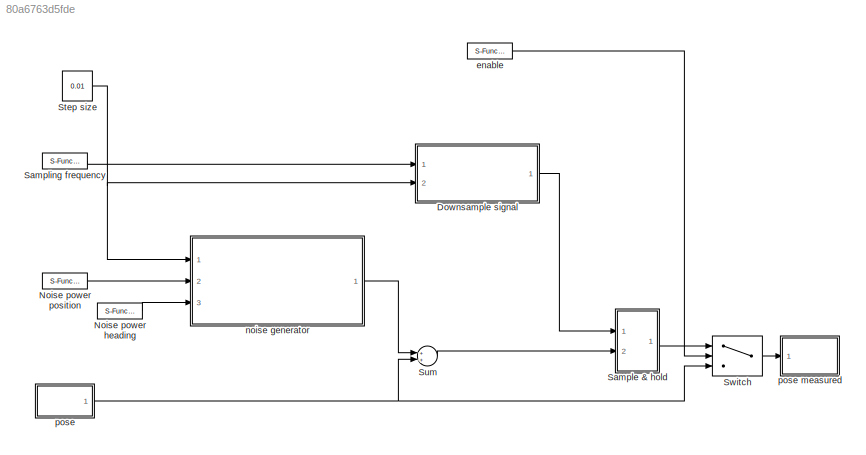
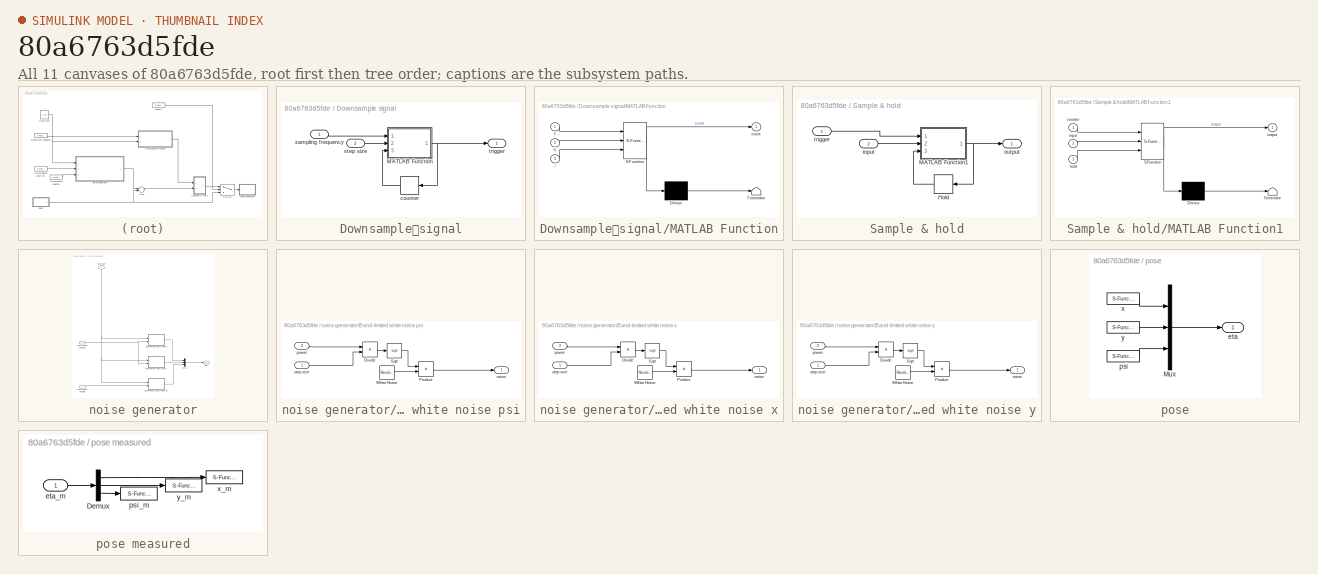
[diagram: thumbnail index - all 11 canvases of the model, root first then tree order]
MODEL slx_80a6763d5fde
KIND model
BLOCK [SubSystem] Downsample	signal
  Ports = [2, 1]
  RequestExecContextInheritance = off
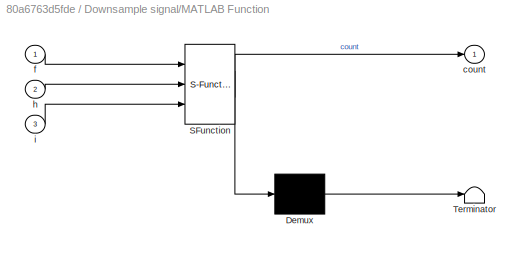
BLOCK [SubSystem] Downsample	signal/MATLAB Function
  ErrorFcn = Stateflow.Translate.translate
  PermitHierarchicalResolution = ExplicitOnly
  Ports = [3, 1]
  RequestExecContextInheritance = off
  SFBlockType = MATLAB Function
  TreatAsAtomicUnit = on
BLOCK [Demux] Downsample	signal/MATLAB Function/ Demux 
  Outputs = 1
  Ports = [1, 1]
BLOCK [S-Function] Downsample	signal/MATLAB Function/ SFunction 
  EnableBusSupport = on
  FunctionName = sf_sfun
  PortCounts = [3 2]
  Ports = [3, 2]
  Tag = Stateflow S-Function measurement 2
BLOCK [Terminator] Downsample	signal/MATLAB Function/ Terminator 
BLOCK [Outport] Downsample	signal/MATLAB Function/count
  IconDisplay = Port number
BLOCK [Inport] Downsample	signal/MATLAB Function/f
  IconDisplay = Port number
BLOCK [Inport] Downsample	signal/MATLAB Function/h
  IconDisplay = Port number
  Port = 2
BLOCK [Inport] Downsample	signal/MATLAB Function/i
  IconDisplay = Port number
  Port = 3
BLOCK [Memory] Downsample	signal/counter
BLOCK [Inport] Downsample	signal/sampling frequency
  IconDisplay = Port number
BLOCK [Inport] Downsample	signal/step size
  IconDisplay = Port number
  Port = 2
BLOCK [Outport] Downsample	signal/trigger
  IconDisplay = Port number
BLOCK [S-Function] Noise power heading
  CopyFcn = NIVeriStand_MDL_functions('', 'IO_copy');
  DeleteFcn = NIVeriStand_MDL_functions('', 'IO_delete');
  EnableBusSupport = off
  FunctionName = NIVeriStandIO
  MoveFcn = set_param(gcb, 'Mask', 'on');
  Parameters = width dtype portnum stime stype btype
  Ports = [0, 1]
  Priority = 3
BLOCK [S-Function] Noise power position
  CopyFcn = NIVeriStand_MDL_functions('', 'IO_copy');
  DeleteFcn = NIVeriStand_MDL_functions('', 'IO_delete');
  EnableBusSupport = off
  FunctionName = NIVeriStandIO
  MoveFcn = set_param(gcb, 'Mask', 'on');
  Parameters = width dtype portnum stime stype btype
  Ports = [0, 1]
  Priority = 1
BLOCK [SubSystem] Sample & hold
  Ports = [2, 1]
  RequestExecContextInheritance = off
BLOCK [Memory] Sample & hold/Hold
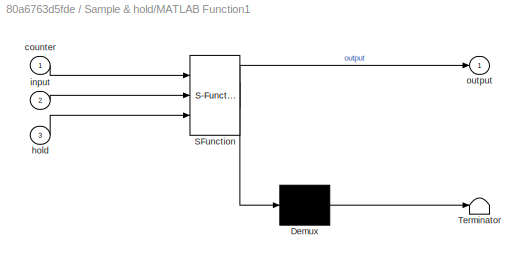
BLOCK [SubSystem] Sample & hold/MATLAB Function1
  ErrorFcn = Stateflow.Translate.translate
  PermitHierarchicalResolution = ExplicitOnly
  Ports = [3, 1]
  RequestExecContextInheritance = off
  SFBlockType = MATLAB Function
  TreatAsAtomicUnit = on
BLOCK [Demux] Sample & hold/MATLAB Function1/ Demux 
  Outputs = 1
  Ports = [1, 1]
BLOCK [S-Function] Sample & hold/MATLAB Function1/ SFunction 
  EnableBusSupport = on
  FunctionName = sf_sfun
  PortCounts = [3 2]
  Ports = [3, 2]
  Tag = Stateflow S-Function measurement 1
BLOCK [Terminator] Sample & hold/MATLAB Function1/ Terminator 
BLOCK [Inport] Sample & hold/MATLAB Function1/counter
  IconDisplay = Port number
BLOCK [Inport] Sample & hold/MATLAB Function1/hold
  IconDisplay = Port number
  Port = 3
BLOCK [Inport] Sample & hold/MATLAB Function1/input
  IconDisplay = Port number
  Port = 2
BLOCK [Outport] Sample & hold/MATLAB Function1/output
  IconDisplay = Port number
BLOCK [Inport] Sample & hold/input
  IconDisplay = Port number
  Port = 2
BLOCK [Outport] Sample & hold/output
  IconDisplay = Port number
BLOCK [Inport] Sample & hold/trigger
  IconDisplay = Port number
BLOCK [S-Function] Sampling frequency
  CopyFcn = NIVeriStand_MDL_functions('', 'IO_copy');
  DeleteFcn = NIVeriStand_MDL_functions('', 'IO_delete');
  EnableBusSupport = off
  FunctionName = NIVeriStandIO
  MoveFcn = set_param(gcb, 'Mask', 'on');
  Parameters = width dtype portnum stime stype btype
  Ports = [0, 1]
  Priority = 2
BLOCK [Constant] Step size
  Value = 0.01
BLOCK [Sum] Sum
  InputSameDT = off
  OutDataTypeStr = Inherit: Inherit via internal rule
  Ports = [2, 1]
  SaturateOnIntegerOverflow = off
BLOCK [Switch] Switch
  Criteria = u2 ~= 0
  InputSameDT = off
  SaturateOnIntegerOverflow = off
BLOCK [S-Function] enable
  CopyFcn = NIVeriStand_MDL_functions('', 'IO_copy');
  DeleteFcn = NIVeriStand_MDL_functions('', 'IO_delete');
  EnableBusSupport = off
  FunctionName = NIVeriStandIO
  MoveFcn = set_param(gcb, 'Mask', 'on');
  Parameters = width dtype portnum stime stype btype
  Ports = [0, 1]
  Priority = 4
BLOCK [SubSystem] noise generator
  Ports = [3, 1]
  RequestExecContextInheritance = off
BLOCK [SubSystem] noise generator/Band-limited white noise psi
  Ports = [2, 1]
  RequestExecContextInheritance = off
BLOCK [Product] noise generator/Band-limited white noise psi/Divide
  InputSameDT = off
  Inputs = */
  OutDataTypeStr = Inherit: Inherit via internal rule
  Ports = [2, 1]
  RndMeth = Floor
  SaturateOnIntegerOverflow = off
BLOCK [Product] noise generator/Band-limited white noise psi/Product
  InputSameDT = off
  OutDataTypeStr = Inherit: Inherit via internal rule
  Ports = [2, 1]
  RndMeth = Floor
  SaturateOnIntegerOverflow = off
BLOCK [Sqrt] noise generator/Band-limited white noise psi/Sqrt
BLOCK [RandomNumber] noise generator/Band-limited white noise psi/White Noise
  DisableCoverage = on
  Seed = 9025
BLOCK [Outport] noise generator/Band-limited white noise psi/noise
  IconDisplay = Port number
BLOCK [Inport] noise generator/Band-limited white noise psi/power
  IconDisplay = Port number
  Port = 2
BLOCK [Inport] noise generator/Band-limited white noise psi/step size
  IconDisplay = Port number
BLOCK [SubSystem] noise generator/Band-limited white noise x
  Ports = [2, 1]
  RequestExecContextInheritance = off
BLOCK [Product] noise generator/Band-limited white noise x/Divide
  InputSameDT = off
  Inputs = */
  OutDataTypeStr = Inherit: Inherit via internal rule
  Ports = [2, 1]
  RndMeth = Floor
  SaturateOnIntegerOverflow = off
BLOCK [Product] noise generator/Band-limited white noise x/Product
  InputSameDT = off
  OutDataTypeStr = Inherit: Inherit via internal rule
  Ports = [2, 1]
  RndMeth = Floor
  SaturateOnIntegerOverflow = off
BLOCK [Sqrt] noise generator/Band-limited white noise x/Sqrt
BLOCK [RandomNumber] noise generator/Band-limited white noise x/White Noise
  DisableCoverage = on
  Seed = 9024
BLOCK [Outport] noise generator/Band-limited white noise x/noise
  IconDisplay = Port number
BLOCK [Inport] noise generator/Band-limited white noise x/power
  IconDisplay = Port number
  Port = 2
BLOCK [Inport] noise generator/Band-limited white noise x/step size
  IconDisplay = Port number
BLOCK [SubSystem] noise generator/Band-limited white noise y
  Ports = [2, 1]
  RequestExecContextInheritance = off
BLOCK [Product] noise generator/Band-limited white noise y/Divide
  InputSameDT = off
  Inputs = */
  OutDataTypeStr = Inherit: Inherit via internal rule
  Ports = [2, 1]
  RndMeth = Floor
  SaturateOnIntegerOverflow = off
BLOCK [Product] noise generator/Band-limited white noise y/Product
  InputSameDT = off
  OutDataTypeStr = Inherit: Inherit via internal rule
  Ports = [2, 1]
  RndMeth = Floor
  SaturateOnIntegerOverflow = off
BLOCK [Sqrt] noise generator/Band-limited white noise y/Sqrt
BLOCK [RandomNumber] noise generator/Band-limited white noise y/White Noise
  DisableCoverage = on
  Seed = 123
BLOCK [Outport] noise generator/Band-limited white noise y/noise
  IconDisplay = Port number
BLOCK [Inport] noise generator/Band-limited white noise y/power
  IconDisplay = Port number
  Port = 2
BLOCK [Inport] noise generator/Band-limited white noise y/step size
  IconDisplay = Port number
BLOCK [Mux] noise generator/Mux1
  DisplayOption = bar
  Inputs = 3
  Ports = [3, 1]
BLOCK [Outport] noise generator/Out1
  IconDisplay = Port number
BLOCK [Inport] noise generator/noise power heading
  IconDisplay = Port number
  Port = 3
BLOCK [Inport] noise generator/noise power position
  IconDisplay = Port number
  Port = 2
BLOCK [Inport] noise generator/step size
  IconDisplay = Port number
BLOCK [SubSystem] pose
  Ports = [0, 1]
  RequestExecContextInheritance = off
BLOCK [SubSystem] pose measured
  Ports = [1]
  RequestExecContextInheritance = off
BLOCK [Demux] pose measured/Demux
  DisplayOption = bar
  Outputs = 3
  Ports = [1, 3]
BLOCK [Inport] pose measured/eta_m
  IconDisplay = Port number
BLOCK [S-Function] pose measured/psi_m
  CopyFcn = NIVeriStand_MDL_functions('', 'IO_copy');
  DeleteFcn = NIVeriStand_MDL_functions('', 'IO_delete');
  EnableBusSupport = off
  FunctionName = NIVeriStandIO
  MoveFcn = set_param(gcb, 'Mask', 'on');
  Parameters = width dtype portnum stime stype btype
  Ports = [1]
  Priority = 3
BLOCK [S-Function] pose measured/x_m
  CopyFcn = NIVeriStand_MDL_functions('', 'IO_copy');
  DeleteFcn = NIVeriStand_MDL_functions('', 'IO_delete');
  EnableBusSupport = off
  FunctionName = NIVeriStandIO
  MoveFcn = set_param(gcb, 'Mask', 'on');
  Parameters = width dtype portnum stime stype btype
  Ports = [1]
  Priority = 1
BLOCK [S-Function] pose measured/y_m
  CopyFcn = NIVeriStand_MDL_functions('', 'IO_copy');
  DeleteFcn = NIVeriStand_MDL_functions('', 'IO_delete');
  EnableBusSupport = off
  FunctionName = NIVeriStandIO
  MoveFcn = set_param(gcb, 'Mask', 'on');
  Parameters = width dtype portnum stime stype btype
  Ports = [1]
  Priority = 2
BLOCK [Mux] pose/Mux
  DisplayOption = bar
  Inputs = 3
  Ports = [3, 1]
BLOCK [Outport] pose/eta
  IconDisplay = Port number
BLOCK [S-Function] pose/psi
  CopyFcn = NIVeriStand_MDL_functions('', 'IO_copy');
  DeleteFcn = NIVeriStand_MDL_functions('', 'IO_delete');
  EnableBusSupport = off
  FunctionName = NIVeriStandIO
  MoveFcn = set_param(gcb, 'Mask', 'on');
  Parameters = width dtype portnum stime stype btype
  Ports = [0, 1]
  Priority = 5
BLOCK [S-Function] pose/x
  CopyFcn = NIVeriStand_MDL_functions('', 'IO_copy');
  DeleteFcn = NIVeriStand_MDL_functions('', 'IO_delete');
  EnableBusSupport = off
  FunctionName = NIVeriStandIO
  MoveFcn = set_param(gcb, 'Mask', 'on');
  Parameters = width dtype portnum stime stype btype
  Ports = [0, 1]
  Priority = 4
BLOCK [S-Function] pose/y
  CopyFcn = NIVeriStand_MDL_functions('', 'IO_copy');
  DeleteFcn = NIVeriStand_MDL_functions('', 'IO_delete');
  EnableBusSupport = off
  FunctionName = NIVeriStandIO
  MoveFcn = set_param(gcb, 'Mask', 'on');
  Parameters = width dtype portnum stime stype btype
  Ports = [0, 1]
  Priority = 6
NET Downsample	signal/MATLAB Function:1 -> Downsample	signal/counter:1, Downsample	signal/trigger:1
LINE Downsample	signal/counter:1 -> Downsample	signal/MATLAB Function:3
LINE Downsample	signal/sampling frequency:1 -> Downsample	signal/MATLAB Function:1
LINE Downsample	signal/step size:1 -> Downsample	signal/MATLAB Function:2
LINE Downsample	signal:1 -> Sample & hold:1
LINE Noise power heading:1 -> noise generator:3
LINE Noise power position:1 -> noise generator:2
LINE Sample & hold/Hold:1 -> Sample & hold/MATLAB Function1:3
NET Sample & hold/MATLAB Function1:1 -> Sample & hold/Hold:1, Sample & hold/output:1
LINE Sample & hold/input:1 -> Sample & hold/MATLAB Function1:2
LINE Sample & hold/trigger:1 -> Sample & hold/MATLAB Function1:1
LINE Sample & hold:1 -> Switch:1
LINE Sampling frequency:1 -> Downsample	signal:1
NET Step size:1 -> Downsample	signal:2, noise generator:1
LINE Sum:1 -> Sample & hold:2
LINE Switch:1 -> pose measured:1
LINE enable:1 -> Switch:2
LINE noise generator/Band-limited white noise psi/Divide:1 -> noise generator/Band-limited white noise psi/Sqrt:1
LINE noise generator/Band-limited white noise psi/Product:1 -> noise generator/Band-limited white noise psi/noise:1
LINE noise generator/Band-limited white noise psi/Sqrt:1 -> noise generator/Band-limited white noise psi/Product:1
LINE noise generator/Band-limited white noise psi/White Noise:1 -> noise generator/Band-limited white noise psi/Product:2
LINE noise generator/Band-limited white noise psi/power:1 -> noise generator/Band-limited white noise psi/Divide:1
LINE noise generator/Band-limited white noise psi/step size:1 -> noise generator/Band-limited white noise psi/Divide:2
LINE noise generator/Band-limited white noise psi:1 -> noise generator/Mux1:3
LINE noise generator/Band-limited white noise x/Divide:1 -> noise generator/Band-limited white noise x/Sqrt:1
LINE noise generator/Band-limited white noise x/Product:1 -> noise generator/Band-limited white noise x/noise:1
LINE noise generator/Band-limited white noise x/Sqrt:1 -> noise generator/Band-limited white noise x/Product:1
LINE noise generator/Band-limited white noise x/White Noise:1 -> noise generator/Band-limited white noise x/Product:2
LINE noise generator/Band-limited white noise x/power:1 -> noise generator/Band-limited white noise x/Divide:1
LINE noise generator/Band-limited white noise x/step size:1 -> noise generator/Band-limited white noise x/Divide:2
LINE noise generator/Band-limited white noise x:1 -> noise generator/Mux1:1
LINE noise generator/Band-limited white noise y/Divide:1 -> noise generator/Band-limited white noise y/Sqrt:1
LINE noise generator/Band-limited white noise y/Product:1 -> noise generator/Band-limited white noise y/noise:1
LINE noise generator/Band-limited white noise y/Sqrt:1 -> noise generator/Band-limited white noise y/Product:1
LINE noise generator/Band-limited white noise y/White Noise:1 -> noise generator/Band-limited white noise y/Product:2
LINE noise generator/Band-limited white noise y/power:1 -> noise generator/Band-limited white noise y/Divide:1
LINE noise generator/Band-limited white noise y/step size:1 -> noise generator/Band-limited white noise y/Divide:2
LINE noise generator/Band-limited white noise y:1 -> noise generator/Mux1:2
LINE noise generator/Mux1:1 -> noise generator/Out1:1
LINE noise generator/noise power heading:1 -> noise generator/Band-limited white noise psi:2
NET noise generator/noise power position:1 -> noise generator/Band-limited white noise x:2, noise generator/Band-limited white noise y:2
NET noise generator/step size:1 -> noise generator/Band-limited white noise psi:1, noise generator/Band-limited white noise x:1, noise generator/Band-limited white noise y:1
LINE noise generator:1 -> Sum:1
LINE pose measured/Demux:1 -> pose measured/x_m:1
LINE pose measured/Demux:2 -> pose measured/y_m:1
LINE pose measured/Demux:3 -> pose measured/psi_m:1
LINE pose measured/eta_m:1 -> pose measured/Demux:1
LINE pose/Mux:1 -> pose/eta:1
LINE pose/psi:1 -> pose/Mux:3
LINE pose/x:1 -> pose/Mux:1
LINE pose/y:1 -> pose/Mux:2
NET pose:1 -> Sum:2, Switch:3
note: NET lines group one-source signal fan-out (src -> all destinations, sorted); 1:1 wires keep LINE
